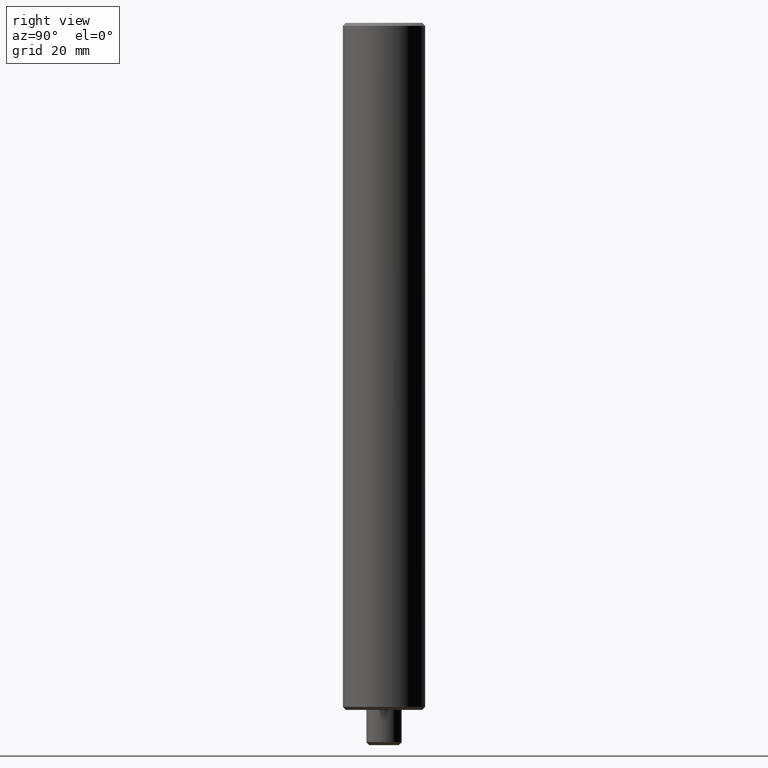
[diagram: clean part render]
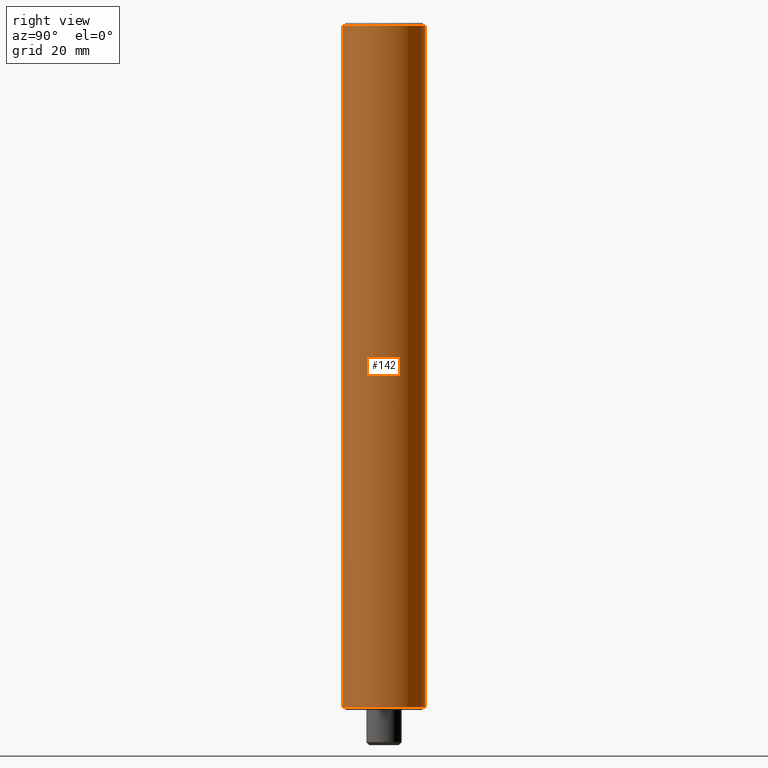
[diagram: same view with one face highlighted and labeled with its STEP entity id]
A machine part, right view. The second image highlights one B-rep face of the part: STEP entity #142.
In plain terms, the highlighted cylindrical surface (partial cylindrical patch) has radius 7 mm, axis along (-0, -0, 1).
Its self-contained STEP definition (entity closure, byte-faithful):
#116=EDGE_CURVE('NONE',#194,#226,#292,.T.);
#134=VERTEX_POINT('NONE',#313);
#142=ADVANCED_FACE('NONE',(#322),#323,.T.);
#156=EDGE_CURVE('NONE',#170,#194,#339,.T.);
#170=VERTEX_POINT('NONE',#355);
#176=EDGE_CURVE('NONE',#134,#170,#362,.T.);
#194=VERTEX_POINT('NONE',#381);
#202=EDGE_CURVE('NONE',#134,#226,#391,.T.);
#226=VERTEX_POINT('NONE',#419);
#292=CIRCLE('',#484,6.99999999999999);
#313=CARTESIAN_POINT('',(-8.57224447675663E-016,-6.99999999999999,0.499999999999994));
#322=FACE_OUTER_BOUND('',#525,.T.);
#323=CYLINDRICAL_SURFACE('',#526,6.99999999999999);
#339=LINE('',#546,#547);
#355=CARTESIAN_POINT('',(0.0,6.99999999999999,0.499999999999994));
#362=CIRCLE('',#575,6.99999999999999);
#381=CARTESIAN_POINT('',(0.0,6.99999999999999,116.5));
#391=LINE('',#613,#614);
#419=CARTESIAN_POINT('',(-8.57224447675663E-016,-6.99999999999999,116.5));
#484=AXIS2_PLACEMENT_3D('',#712,#713,#714);
#525=EDGE_LOOP('',(#758,#759,#760,#761));
#526=AXIS2_PLACEMENT_3D('',#762,#763,#764);
#546=CARTESIAN_POINT('',(0.0,6.99999999999999,44.3839792060492));
#547=VECTOR('',#785,1000.0);
#575=AXIS2_PLACEMENT_3D('',#809,#810,#811);
#613=CARTESIAN_POINT('',(-8.57224447675663E-016,-6.99999999999999,44.3839792060492));
#614=VECTOR('',#849,1000.0);
#712=CARTESIAN_POINT('',(0.0,0.0,116.5));
#713=DIRECTION('',(0.0,0.0,-1.0));
#714=DIRECTION('',(0.0,-1.0,0.0));
#758=ORIENTED_EDGE('',*,*,#202,.F.);
#759=ORIENTED_EDGE('',*,*,#176,.T.);
#760=ORIENTED_EDGE('',*,*,#156,.T.);
#761=ORIENTED_EDGE('',*,*,#116,.T.);
#762=CARTESIAN_POINT('',(0.0,0.0,44.3839792060492));
#763=DIRECTION('',(-0.0,-0.0,1.0));
#764=DIRECTION('',(0.0,1.0,0.0));
#785=DIRECTION('',(0.0,-0.0,1.0));
#809=CARTESIAN_POINT('',(0.0,0.0,0.499999999999994));
#810=DIRECTION('',(0.0,-0.0,1.0));
#811=DIRECTION('',(0.0,1.0,0.0));
#849=DIRECTION('',(0.0,-0.0,1.0));